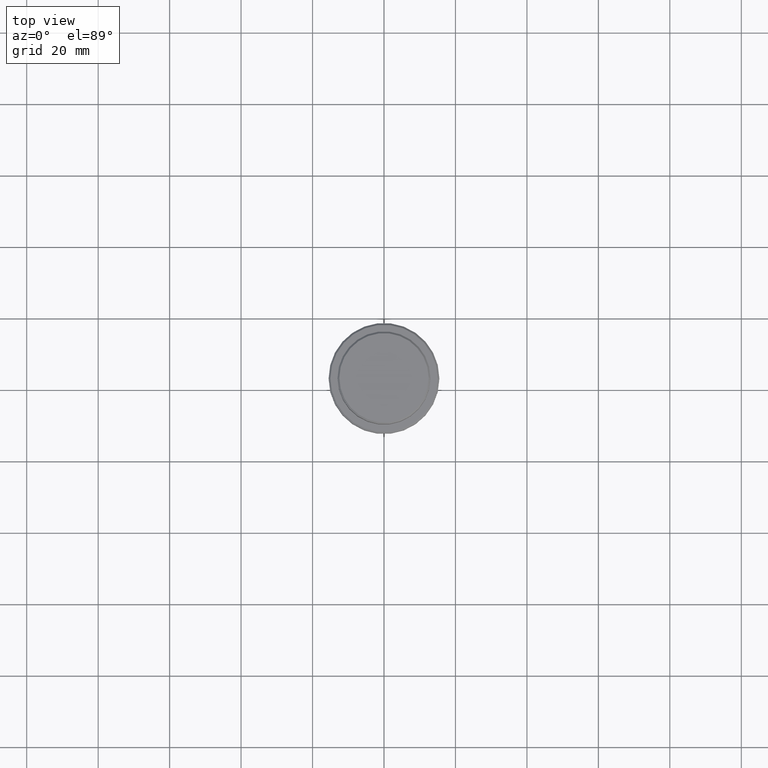
[diagram: clean part render]
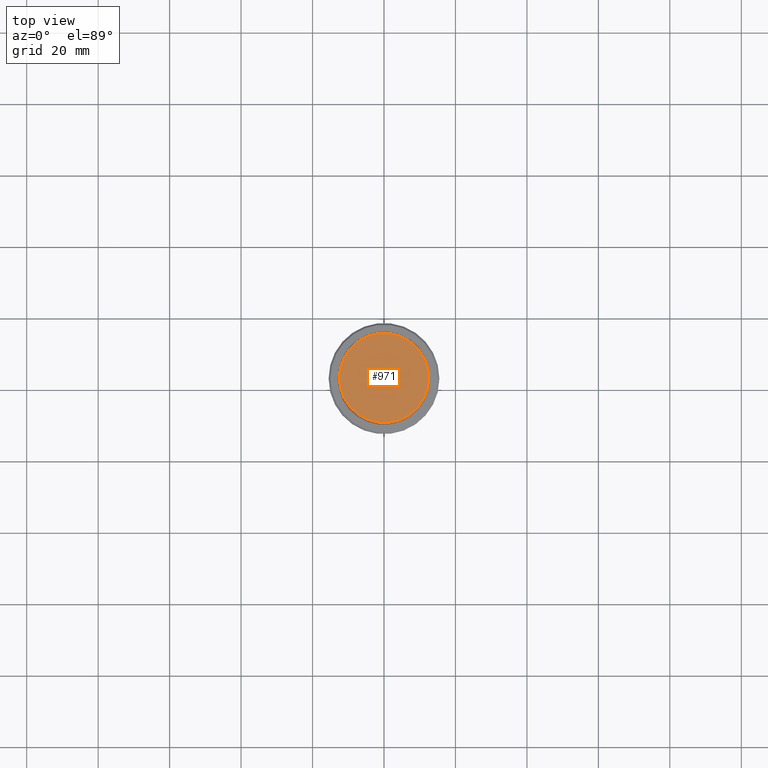
[diagram: same view with one face highlighted and labeled with its STEP entity id]
A machine part, top view. The second image highlights one B-rep face of the part: STEP entity #971.
In plain terms, the highlighted planar face has unit normal (0, -0, 1).
Its self-contained STEP definition (entity closure, byte-faithful):
#37 = CIRCLE ( 'NONE', #615, 12.49999999999998579 ) ;
#38 = AXIS2_PLACEMENT_3D ( 'NONE', #483, #371, #612 ) ;
#149 = ORIENTED_EDGE ( 'NONE', *, *, #1179, .T. ) ;
#222 = CIRCLE ( 'NONE', #38, 12.49999999999998579 ) ;
#259 = ORIENTED_EDGE ( 'NONE', *, *, #409, .T. ) ;
#371 = DIRECTION ( 'NONE',  ( -0.000000000000000000, -0.000000000000000000, 1.000000000000000000 ) ) ;
#372 = VERTEX_POINT ( 'NONE', #1263 ) ;
#398 = CARTESIAN_POINT ( 'NONE',  ( 0.000000000000000000, 0.000000000000000000, 0.000000000000000000 ) ) ;
#409 = EDGE_CURVE ( 'NONE', #868, #372, #222, .T. ) ;
#417 = DIRECTION ( 'NONE',  ( 1.000000000000000000, 0.000000000000000000, 0.000000000000000000 ) ) ;
#483 = CARTESIAN_POINT ( 'NONE',  ( 0.000000000000000000, 0.000000000000000000, 0.000000000000000000 ) ) ;
#612 = DIRECTION ( 'NONE',  ( 1.000000000000000000, 0.000000000000000000, 0.000000000000000000 ) ) ;
#615 = AXIS2_PLACEMENT_3D ( 'NONE', #893, #765, #663 ) ;
#663 = DIRECTION ( 'NONE',  ( 1.000000000000000000, 0.000000000000000000, 0.000000000000000000 ) ) ;
#765 = DIRECTION ( 'NONE',  ( -0.000000000000000000, -0.000000000000000000, 1.000000000000000000 ) ) ;
#857 = FACE_OUTER_BOUND ( 'NONE', #969, .T. ) ;
#868 = VERTEX_POINT ( 'NONE', #1019 ) ;
#893 = CARTESIAN_POINT ( 'NONE',  ( 0.000000000000000000, 0.000000000000000000, 0.000000000000000000 ) ) ;
#969 = EDGE_LOOP ( 'NONE', ( #259, #149 ) ) ;
#971 = ADVANCED_FACE ( 'NONE', ( #857 ), #1385, .T. ) ;
#975 = DIRECTION ( 'NONE',  ( 0.000000000000000000, -0.000000000000000000, 1.000000000000000000 ) ) ;
#1019 = CARTESIAN_POINT ( 'NONE',  ( -12.49999999999998579, 0.000000000000000000, 0.000000000000000000 ) ) ;
#1179 = EDGE_CURVE ( 'NONE', #372, #868, #37, .T. ) ;
#1263 = CARTESIAN_POINT ( 'NONE',  ( 12.49999999999998579, 1.561424668912874125E-15, 0.000000000000000000 ) ) ;
#1385 = PLANE ( 'NONE',  #1416 ) ;
#1416 = AXIS2_PLACEMENT_3D ( 'NONE', #398, #975, #417 ) ;